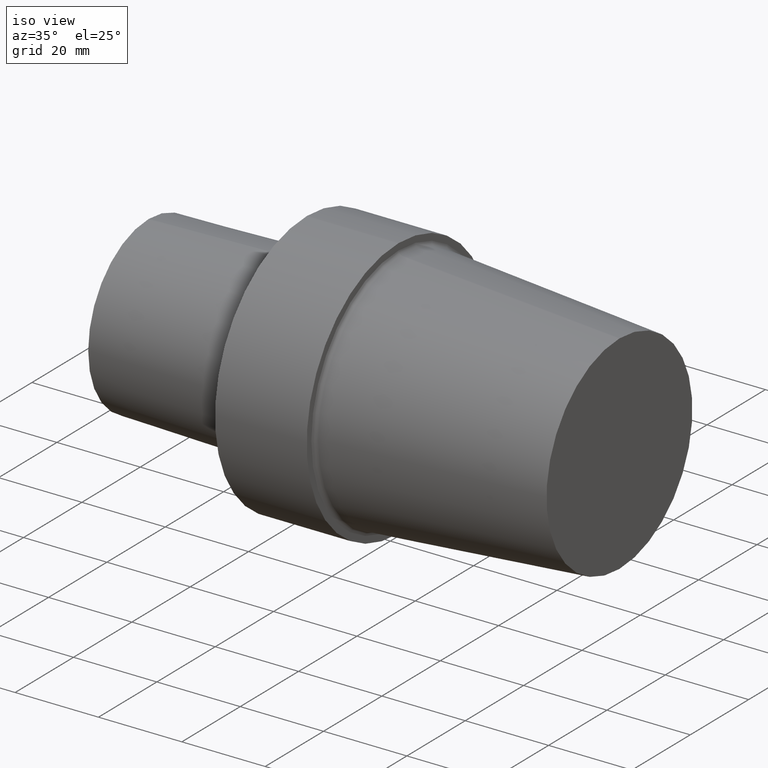
[diagram: clean part render]
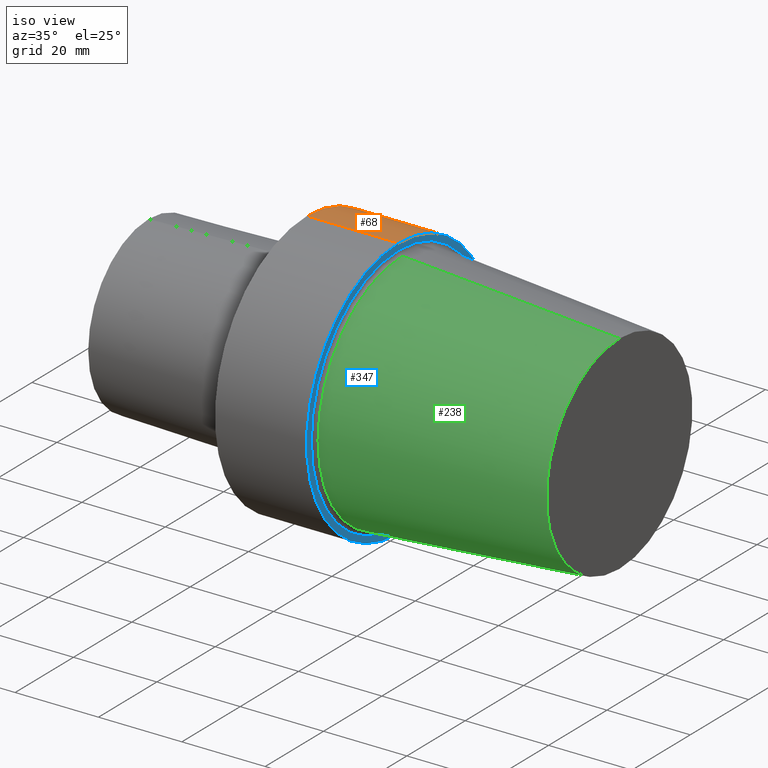
[diagram: same view with three faces highlighted in distinct colors, each labeled with its STEP entity id]
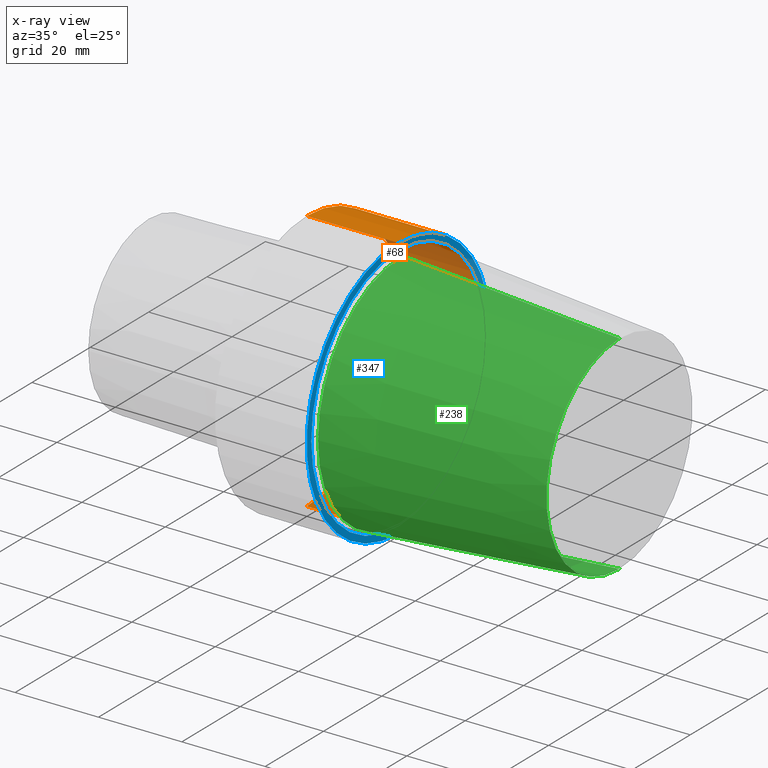
[diagram: x-ray of the same camera — body ghosted, the three highlighted faces saturated]
A machine part, iso view with three faces highlighted in distinct colors.
The next image is the same camera in x-ray (body ghosted, the three faces saturated) — at least one of them is partly hidden behind the body in this view.
Their STEP definitions:

[orange] entity #68 — the highlighted cylindrical surface (partial cylindrical patch) has radius 31.5 mm, axis along (-1, 0, 0).
#8 = LINE ( 'NONE', #239, #291 ) ;
#20 = CIRCLE ( 'NONE', #235, 31.49999996787000001 ) ;
#23 = EDGE_LOOP ( 'NONE', ( #383, #311, #140, #289 ) ) ;
#25 = VERTEX_POINT ( 'NONE', #61 ) ;
#31 = LINE ( 'NONE', #386, #285 ) ;
#40 = DIRECTION ( 'NONE',  ( -1.000000000000000000, 0.000000000000000000, 0.000000000000000000 ) ) ;
#61 = CARTESIAN_POINT ( 'NONE',  ( 0.000000000000000000, 3.857637413379370248E-15, -31.49999996787000001 ) ) ;
#68 = ADVANCED_FACE ( 'NONE', ( #123 ), #208, .T. ) ;
#74 = EDGE_CURVE ( 'NONE', #190, #256, #84, .T. ) ;
#76 = EDGE_CURVE ( 'NONE', #317, #25, #20, .T. ) ;
#84 = CIRCLE ( 'NONE', #135, 31.49999996787000001 ) ;
#123 = FACE_OUTER_BOUND ( 'NONE', #23, .T. ) ;
#135 = AXIS2_PLACEMENT_3D ( 'NONE', #201, #147, #324 ) ;
#140 = ORIENTED_EDGE ( 'NONE', *, *, #76, .F. ) ;
#147 = DIRECTION ( 'NONE',  ( -1.000000000000000000, 0.000000000000000000, 0.000000000000000000 ) ) ;
#174 = CARTESIAN_POINT ( 'NONE',  ( 21.99999997755999814, 0.000000000000000000, 31.49999996787000001 ) ) ;
#179 = CARTESIAN_POINT ( 'NONE',  ( 0.000000000000000000, 0.000000000000000000, 0.000000000000000000 ) ) ;
#190 = VERTEX_POINT ( 'NONE', #174 ) ;
#201 = CARTESIAN_POINT ( 'NONE',  ( 21.99999997755999814, 0.000000000000000000, 0.000000000000000000 ) ) ;
#205 = DIRECTION ( 'NONE',  ( -1.000000000000000000, 0.000000000000000000, 0.000000000000000000 ) ) ;
#208 = CYLINDRICAL_SURFACE ( 'NONE', #278, 31.49999996787000001 ) ;
#225 = EDGE_CURVE ( 'NONE', #190, #317, #31, .T. ) ;
#232 = DIRECTION ( 'NONE',  ( -1.000000000000000000, 0.000000000000000000, 0.000000000000000000 ) ) ;
#235 = AXIS2_PLACEMENT_3D ( 'NONE', #179, #352, #327 ) ;
#239 = CARTESIAN_POINT ( 'NONE',  ( -37.99999996124000035, 3.857637413379370248E-15, -31.49999996787000001 ) ) ;
#256 = VERTEX_POINT ( 'NONE', #353 ) ;
#257 = EDGE_CURVE ( 'NONE', #256, #25, #8, .T. ) ;
#278 = AXIS2_PLACEMENT_3D ( 'NONE', #387, #40, #356 ) ;
#285 = VECTOR ( 'NONE', #205, 1000.000000000000000 ) ;
#289 = ORIENTED_EDGE ( 'NONE', *, *, #225, .F. ) ;
#291 = VECTOR ( 'NONE', #232, 1000.000000000000000 ) ;
#311 = ORIENTED_EDGE ( 'NONE', *, *, #257, .T. ) ;
#317 = VERTEX_POINT ( 'NONE', #325 ) ;
#324 = DIRECTION ( 'NONE',  ( 0.000000000000000000, 0.000000000000000000, 1.000000000000000000 ) ) ;
#325 = CARTESIAN_POINT ( 'NONE',  ( 0.000000000000000000, 0.000000000000000000, 31.49999996787000001 ) ) ;
#327 = DIRECTION ( 'NONE',  ( 0.000000000000000000, 0.000000000000000000, 1.000000000000000000 ) ) ;
#352 = DIRECTION ( 'NONE',  ( -1.000000000000000000, 0.000000000000000000, 0.000000000000000000 ) ) ;
#353 = CARTESIAN_POINT ( 'NONE',  ( 21.99999997755999814, 3.857637413379370248E-15, -31.49999996787000001 ) ) ;
#356 = DIRECTION ( 'NONE',  ( 0.000000000000000000, 0.000000000000000000, 1.000000000000000000 ) ) ;
#383 = ORIENTED_EDGE ( 'NONE', *, *, #74, .T. ) ;
#386 = CARTESIAN_POINT ( 'NONE',  ( -37.99999996124000035, 0.000000000000000000, 31.49999996787000001 ) ) ;
#387 = CARTESIAN_POINT ( 'NONE',  ( -37.99999996124000035, 0.000000000000000000, 0.000000000000000000 ) ) ;

[blue] entity #347 — the highlighted planar face has unit normal (-1, 0, 0).
#15 = AXIS2_PLACEMENT_3D ( 'NONE', #209, #328, #302 ) ;
#18 = VERTEX_POINT ( 'NONE', #301 ) ;
#35 = DIRECTION ( 'NONE',  ( -1.000000000000000000, 0.000000000000000000, 0.000000000000000000 ) ) ;
#74 = EDGE_CURVE ( 'NONE', #190, #256, #84, .T. ) ;
#81 = EDGE_LOOP ( 'NONE', ( #196, #253 ) ) ;
#84 = CIRCLE ( 'NONE', #135, 31.49999996787000001 ) ;
#94 = DIRECTION ( 'NONE',  ( -1.000000000000000000, 0.000000000000000000, 0.000000000000000000 ) ) ;
#99 = PLANE ( 'NONE',  #15 ) ;
#103 = EDGE_CURVE ( 'NONE', #345, #18, #369, .T. ) ;
#125 = DIRECTION ( 'NONE',  ( 0.000000000000000000, 0.000000000000000000, 1.000000000000000000 ) ) ;
#131 = AXIS2_PLACEMENT_3D ( 'NONE', #321, #357, #148 ) ;
#135 = AXIS2_PLACEMENT_3D ( 'NONE', #201, #147, #324 ) ;
#147 = DIRECTION ( 'NONE',  ( -1.000000000000000000, 0.000000000000000000, 0.000000000000000000 ) ) ;
#148 = DIRECTION ( 'NONE',  ( 0.000000000000000000, 0.000000000000000000, 1.000000000000000000 ) ) ;
#151 = CIRCLE ( 'NONE', #131, 29.92737221947408344 ) ;
#153 = FACE_OUTER_BOUND ( 'NONE', #81, .T. ) ;
#171 = ORIENTED_EDGE ( 'NONE', *, *, #277, .T. ) ;
#174 = CARTESIAN_POINT ( 'NONE',  ( 21.99999997755999814, 0.000000000000000000, 31.49999996787000001 ) ) ;
#190 = VERTEX_POINT ( 'NONE', #174 ) ;
#196 = ORIENTED_EDGE ( 'NONE', *, *, #74, .F. ) ;
#201 = CARTESIAN_POINT ( 'NONE',  ( 21.99999997755999814, 0.000000000000000000, 0.000000000000000000 ) ) ;
#209 = CARTESIAN_POINT ( 'NONE',  ( 21.99999997755999814, 31.49999996787000001, 0.000000000000000000 ) ) ;
#212 = CARTESIAN_POINT ( 'NONE',  ( 21.99999997755999814, 0.000000000000000000, 0.000000000000000000 ) ) ;
#233 = DIRECTION ( 'NONE',  ( 0.000000000000000000, 0.000000000000000000, 1.000000000000000000 ) ) ;
#234 = CARTESIAN_POINT ( 'NONE',  ( 21.99999997755999814, 0.000000000000000000, 0.000000000000000000 ) ) ;
#247 = AXIS2_PLACEMENT_3D ( 'NONE', #234, #94, #125 ) ;
#251 = EDGE_CURVE ( 'NONE', #256, #190, #314, .T. ) ;
#253 = ORIENTED_EDGE ( 'NONE', *, *, #251, .F. ) ;
#256 = VERTEX_POINT ( 'NONE', #353 ) ;
#269 = AXIS2_PLACEMENT_3D ( 'NONE', #212, #35, #233 ) ;
#271 = CARTESIAN_POINT ( 'NONE',  ( 21.99999997755999814, 3.665046059574384875E-15, -29.92737221969742833 ) ) ;
#277 = EDGE_CURVE ( 'NONE', #18, #345, #151, .T. ) ;
#298 = FACE_BOUND ( 'NONE', #374, .T. ) ;
#301 = CARTESIAN_POINT ( 'NONE',  ( 21.99999997755999814, 0.000000000000000000, 29.92737221969742833 ) ) ;
#302 = DIRECTION ( 'NONE',  ( 0.000000000000000000, 0.000000000000000000, 1.000000000000000000 ) ) ;
#314 = CIRCLE ( 'NONE', #247, 31.49999996787000001 ) ;
#315 = ORIENTED_EDGE ( 'NONE', *, *, #103, .T. ) ;
#321 = CARTESIAN_POINT ( 'NONE',  ( 21.99999997755999814, 0.000000000000000000, 0.000000000000000000 ) ) ;
#324 = DIRECTION ( 'NONE',  ( 0.000000000000000000, 0.000000000000000000, 1.000000000000000000 ) ) ;
#328 = DIRECTION ( 'NONE',  ( -1.000000000000000000, 0.000000000000000000, 0.000000000000000000 ) ) ;
#345 = VERTEX_POINT ( 'NONE', #271 ) ;
#347 = ADVANCED_FACE ( 'NONE', ( #298, #153 ), #99, .F. ) ;
#353 = CARTESIAN_POINT ( 'NONE',  ( 21.99999997755999814, 3.857637413379370248E-15, -31.49999996787000001 ) ) ;
#357 = DIRECTION ( 'NONE',  ( -1.000000000000000000, 0.000000000000000000, 0.000000000000000000 ) ) ;
#369 = CIRCLE ( 'NONE', #269, 29.92737221947408344 ) ;
#374 = EDGE_LOOP ( 'NONE', ( #171, #315 ) ) ;

[green] entity #238 — the highlighted conical surface has half-angle 4.316 deg.
#1 = EDGE_CURVE ( 'NONE', #379, #260, #272, .T. ) ;
#12 = EDGE_CURVE ( 'NONE', #189, #182, #350, .T. ) ;
#60 = VECTOR ( 'NONE', #262, 1000.000000000000114 ) ;
#65 = DIRECTION ( 'NONE',  ( 0.000000000000000000, 0.000000000000000000, 1.000000000000000000 ) ) ;
#77 = CONICAL_SURFACE ( 'NONE', #274, 24.99999997449999967, 0.07532889090399662313 ) ;
#82 = ORIENTED_EDGE ( 'NONE', *, *, #12, .T. ) ;
#86 = EDGE_LOOP ( 'NONE', ( #169, #134, #82, #287 ) ) ;
#90 = DIRECTION ( 'NONE',  ( 0.000000000000000000, 0.000000000000000000, 1.000000000000000000 ) ) ;
#95 = DIRECTION ( 'NONE',  ( -1.000000000000000000, 0.000000000000000000, 0.000000000000000000 ) ) ;
#122 = DIRECTION ( 'NONE',  ( -0.9971641204809192915, 9.216406412095682842E-18, -0.07525766954612962689 ) ) ;
#134 = ORIENTED_EDGE ( 'NONE', *, *, #185, .T. ) ;
#169 = ORIENTED_EDGE ( 'NONE', *, *, #1, .F. ) ;
#178 = CARTESIAN_POINT ( 'NONE',  ( 74.99999992349999900, 0.000000000000000000, 0.000000000000000000 ) ) ;
#182 = VERTEX_POINT ( 'NONE', #230 ) ;
#183 = CIRCLE ( 'NONE', #370, 28.93020810049118552 ) ;
#184 = DIRECTION ( 'NONE',  ( 0.000000000000000000, 0.000000000000000000, 1.000000000000000000 ) ) ;
#185 = EDGE_CURVE ( 'NONE', #379, #189, #354, .T. ) ;
#189 = VERTEX_POINT ( 'NONE', #349 ) ;
#197 = CARTESIAN_POINT ( 'NONE',  ( 74.99999992349999900, 0.000000000000000000, 0.000000000000000000 ) ) ;
#202 = CARTESIAN_POINT ( 'NONE',  ( 22.92474230661676060, 3.542928674893338124E-15, -28.93020810049118552 ) ) ;
#221 = AXIS2_PLACEMENT_3D ( 'NONE', #197, #95, #90 ) ;
#230 = CARTESIAN_POINT ( 'NONE',  ( 22.92474230661676060, 0.000000000000000000, 28.93020810049118552 ) ) ;
#237 = CARTESIAN_POINT ( 'NONE',  ( 74.99999992349999900, 0.000000000000000000, 24.99999997449999967 ) ) ;
#238 = ADVANCED_FACE ( 'NONE', ( #322 ), #77, .T. ) ;
#241 = DIRECTION ( 'NONE',  ( -1.000000000000000000, 0.000000000000000000, 0.000000000000000000 ) ) ;
#244 = CARTESIAN_POINT ( 'NONE',  ( 74.99999992349999900, 3.302272834819433089E-15, -24.99999997449999967 ) ) ;
#260 = VERTEX_POINT ( 'NONE', #202 ) ;
#262 = DIRECTION ( 'NONE',  ( -0.9971641204809192915, 0.000000000000000000, 0.07525766954612962689 ) ) ;
#272 = LINE ( 'NONE', #318, #307 ) ;
#273 = CARTESIAN_POINT ( 'NONE',  ( 22.92474230661676060, 0.000000000000000000, 0.000000000000000000 ) ) ;
#274 = AXIS2_PLACEMENT_3D ( 'NONE', #178, #294, #184 ) ;
#287 = ORIENTED_EDGE ( 'NONE', *, *, #290, .F. ) ;
#290 = EDGE_CURVE ( 'NONE', #260, #182, #183, .T. ) ;
#294 = DIRECTION ( 'NONE',  ( -1.000000000000000000, 0.000000000000000000, 0.000000000000000000 ) ) ;
#307 = VECTOR ( 'NONE', #122, 1000.000000000000114 ) ;
#318 = CARTESIAN_POINT ( 'NONE',  ( 74.99999992349999900, 3.061616994745535943E-15, -24.99999997449999967 ) ) ;
#322 = FACE_OUTER_BOUND ( 'NONE', #86, .T. ) ;
#349 = CARTESIAN_POINT ( 'NONE',  ( 74.99999992349999900, 0.000000000000000000, 24.99999997449999967 ) ) ;
#350 = LINE ( 'NONE', #237, #60 ) ;
#354 = CIRCLE ( 'NONE', #221, 24.99999997449999967 ) ;
#370 = AXIS2_PLACEMENT_3D ( 'NONE', #273, #241, #65 ) ;
#379 = VERTEX_POINT ( 'NONE', #244 ) ;